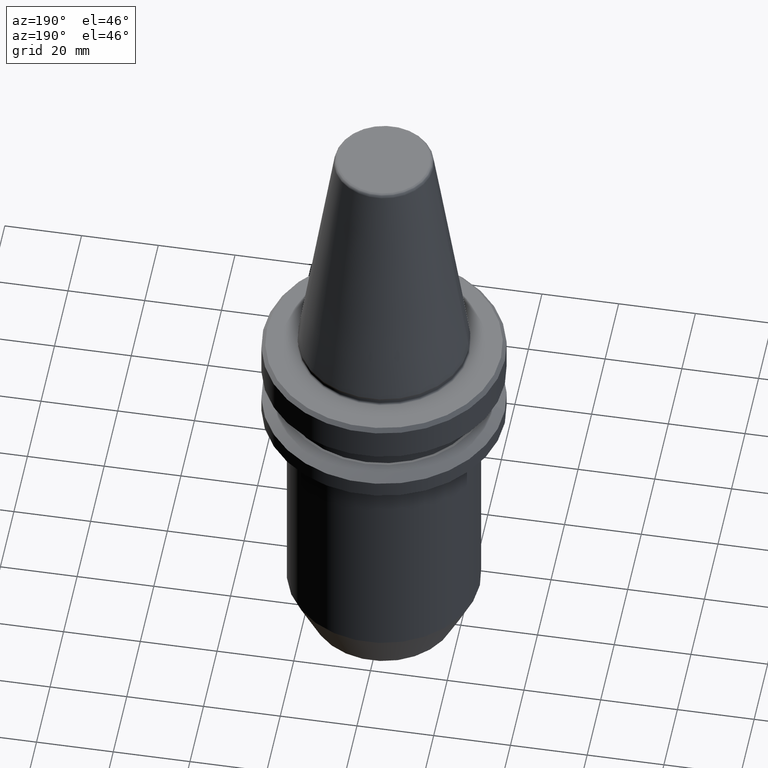
[diagram: clean part render]
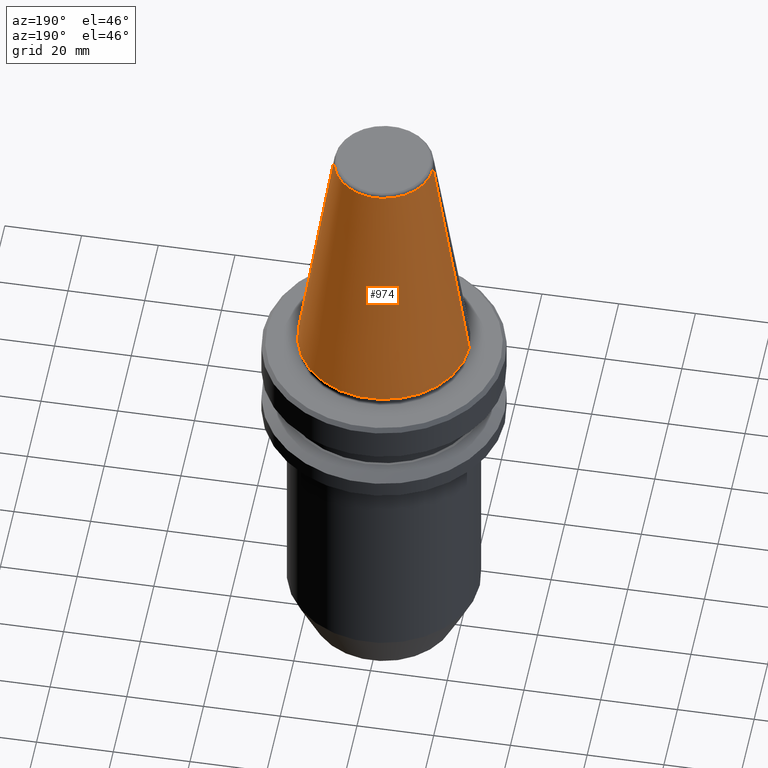
[diagram: same view with one face highlighted and labeled with its STEP entity id]
A machine part, auxiliary view. The second image highlights one B-rep face of the part: STEP entity #974.
In plain terms, the highlighted conical surface has half-angle 8.297 deg.
Its self-contained STEP definition (entity closure, byte-faithful):
#17 = CARTESIAN_POINT ( 'NONE',  ( 22.22499999999971700, 0.0000000000000000000, 0.6887132116596417200 ) ) ;
#34 = AXIS2_PLACEMENT_3D ( 'NONE', #95, #195, #756 ) ;
#76 = DIRECTION ( 'NONE',  ( -0.0000000000000000000, -0.0000000000000000000, 1.000000000000000000 ) ) ;
#79 = LINE ( 'NONE', #315, #432 ) ;
#95 = CARTESIAN_POINT ( 'NONE',  ( 0.0000000000000000000, 0.0000000000000000000, 0.6887132116596417200 ) ) ;
#97 = FACE_OUTER_BOUND ( 'NONE', #257, .T. ) ;
#143 = EDGE_CURVE ( 'NONE', #543, #650, #382, .T. ) ;
#157 = DIRECTION ( 'NONE',  ( -0.1443081888881784800, 0.0000000000000000000, -0.9895327920891828800 ) ) ;
#161 = AXIS2_PLACEMENT_3D ( 'NONE', #589, #76, #662 ) ;
#176 = EDGE_CURVE ( 'NONE', #586, #650, #79, .T. ) ;
#195 = DIRECTION ( 'NONE',  ( 0.0000000000000000000, 0.0000000000000000000, -1.000000000000000000 ) ) ;
#221 = DIRECTION ( 'NONE',  ( 1.000000000000000000, 0.0000000000000000000, 0.0000000000000000000 ) ) ;
#257 = EDGE_LOOP ( 'NONE', ( #1029, #295, #836, #758 ) ) ;
#261 = CARTESIAN_POINT ( 'NONE',  ( -12.81220206925713600, 1.569042225414484800E-015, 65.23302140054848100 ) ) ;
#295 = ORIENTED_EDGE ( 'NONE', *, *, #770, .T. ) ;
#309 = CARTESIAN_POINT ( 'NONE',  ( -22.22499999999971700, 2.721777511104957700E-015, 0.6887132116596417200 ) ) ;
#315 = CARTESIAN_POINT ( 'NONE',  ( -22.22499999999971700, 0.0000000000000000000, 0.6887132116596417200 ) ) ;
#382 = CIRCLE ( 'NONE', #389, 22.22499999999971700 ) ;
#389 = AXIS2_PLACEMENT_3D ( 'NONE', #727, #937, #221 ) ;
#432 = VECTOR ( 'NONE', #157, 999.9999999999998900 ) ;
#452 = CONICAL_SURFACE ( 'NONE', #34, 22.22499999999971700, 0.1448138077623186700 ) ;
#470 = CIRCLE ( 'NONE', #161, 12.81220206925715000 ) ;
#532 = VERTEX_POINT ( 'NONE', #541 ) ;
#541 = CARTESIAN_POINT ( 'NONE',  ( 12.81220206925713600, 0.0000000000000000000, 65.23302140054848100 ) ) ;
#543 = VERTEX_POINT ( 'NONE', #17 ) ;
#548 = LINE ( 'NONE', #578, #622 ) ;
#578 = CARTESIAN_POINT ( 'NONE',  ( 22.22499999999971700, 2.721777511104957700E-015, 0.6887132116596417200 ) ) ;
#586 = VERTEX_POINT ( 'NONE', #261 ) ;
#589 = CARTESIAN_POINT ( 'NONE',  ( 0.0000000000000000000, 0.0000000000000000000, 65.23302140054848100 ) ) ;
#622 = VECTOR ( 'NONE', #1019, 999.9999999999998900 ) ;
#650 = VERTEX_POINT ( 'NONE', #309 ) ;
#662 = DIRECTION ( 'NONE',  ( 1.000000000000000000, 0.0000000000000000000, 0.0000000000000000000 ) ) ;
#727 = CARTESIAN_POINT ( 'NONE',  ( 0.0000000000000000000, 0.0000000000000000000, 0.6887132116596417200 ) ) ;
#756 = DIRECTION ( 'NONE',  ( -1.000000000000000000, 0.0000000000000000000, 0.0000000000000000000 ) ) ;
#758 = ORIENTED_EDGE ( 'NONE', *, *, #176, .F. ) ;
#770 = EDGE_CURVE ( 'NONE', #532, #543, #548, .T. ) ;
#815 = EDGE_CURVE ( 'NONE', #532, #586, #470, .T. ) ;
#836 = ORIENTED_EDGE ( 'NONE', *, *, #143, .T. ) ;
#937 = DIRECTION ( 'NONE',  ( -0.0000000000000000000, -0.0000000000000000000, 1.000000000000000000 ) ) ;
#974 = ADVANCED_FACE ( 'NONE', ( #97 ), #452, .T. ) ;
#1019 = DIRECTION ( 'NONE',  ( 0.1443081888881784800, 1.767265616126594100E-017, -0.9895327920891828800 ) ) ;
#1029 = ORIENTED_EDGE ( 'NONE', *, *, #815, .F. ) ;